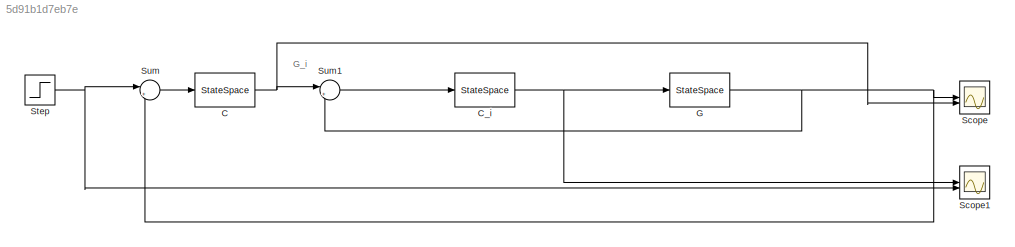
MODEL slx_5d91b1d7eb7e
KIND model
CONFIG AbsTol = auto
CONFIG EnableMultiTasking = off
CONFIG FixedStep = auto
CONFIG MaxStep = auto
CONFIG MinStep = auto
CONFIG RelTol = 1e-3
CONFIG SampleTimeConstraint = Unconstrained
CONFIG SolverName = VariableStepAuto
CONFIG StartTime = 0.0
CONFIG StopTime = 60
BLOCK [StateSpace]  C
  A = Cc.A
  B = Cc.B
  C = Cc.C
  D = Cc.D
  InitialCondition = 0
BLOCK [StateSpace] C_i
  A = Cis.A
  B = Cis.B
  C = Cis.C
  D = Cis.D
  InitialCondition = 0
BLOCK [StateSpace] G
  A = Go.A
  B = Go.B
  C = Go.C
  D = Go.D
  InitialCondition = 0
BLOCK [Scope] Scope
  Floating = off
  NumInputPorts = 2
  ScopeSpecificationString = Simulink.scopes.TimeScopeBlockCfg('CurrentConfiguration', extmgr.ConfigurationSet(extmgr.Configuration('Core','General UI',true),extmgr.Configuration('Core','Source UI',true),extmgr.Configuration('Sources','WiredSimulink',true),extmgr.Configuration('Visuals','Time Domain',true,'SerializedDisplays',{struct('MinYLimReal','-0.08951','MaxYLimReal','0.80542','YLabelReal','','MinYLimMag','0.00000','MaxY...<+1326ch>
BLOCK [Scope] Scope1
  Floating = off
  NumInputPorts = 2
  ScopeSpecificationString = Simulink.scopes.TimeScopeBlockCfg('CurrentConfiguration', extmgr.ConfigurationSet(extmgr.Configuration('Core','General UI',true),extmgr.Configuration('Core','Source UI',true),extmgr.Configuration('Sources','WiredSimulink',true,'DataLoggingVariableName','ScopeData1'),extmgr.Configuration('Visuals','Time Domain',true,'SerializedDisplays',{struct('MinYLimReal','-190787441.10029','MaxYLimReal','669511...<+1438ch>
BLOCK [Step] Step
  SampleTime = 0
BLOCK [Sum] Sum
  Inputs = |+-
BLOCK [Sum] Sum1
  Inputs = |+-
ANNOTATION (root): G_i
NET  C:1 -> Scope:2, Sum1:1
NET C_i:1 -> G:1, Scope1:1
NET G:1 -> Scope:1, Sum1:2, Sum:2
NET Step:1 -> Scope1:2, Sum:1
LINE Sum1:1 -> C_i:1
LINE Sum:1 ->  C:1
note: NET lines group one-source signal fan-out (src -> all destinations, sorted); 1:1 wires keep LINE
